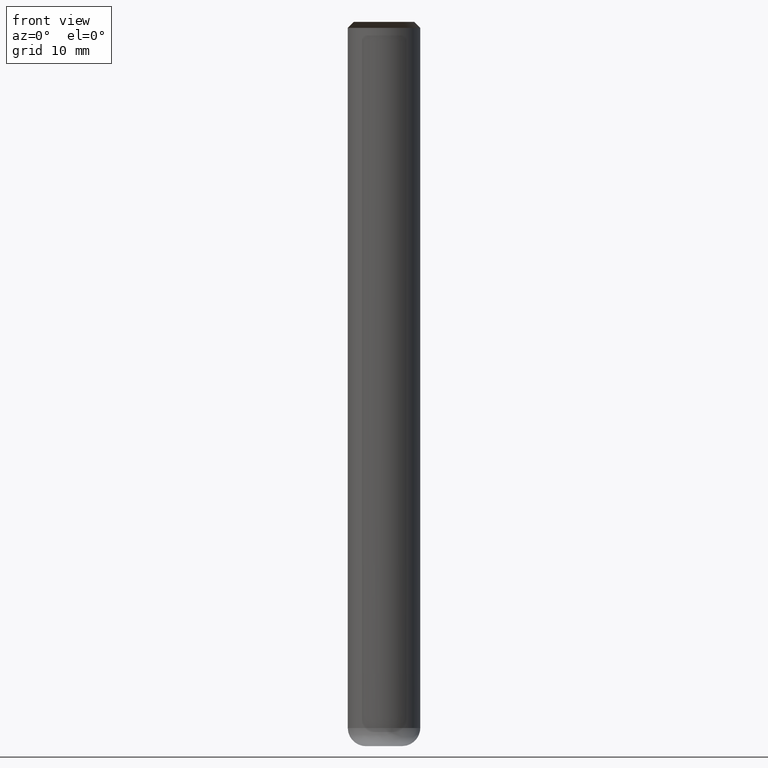
[diagram: clean part render]
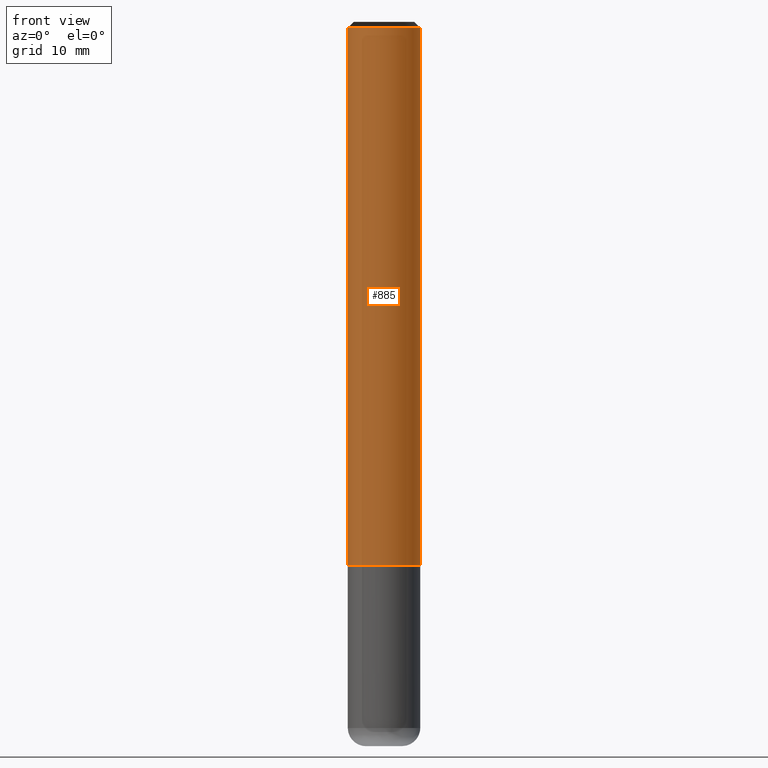
[diagram: same view with one face highlighted and labeled with its STEP entity id]
A machine part, front view. The second image highlights one B-rep face of the part: STEP entity #885.
In plain terms, the highlighted face is a freeform B-spline surface patch.
Its self-contained STEP definition (entity closure, byte-faithful):
#558=CARTESIAN_POINT('',(3.0,0.0,0.0));
#562=CARTESIAN_POINT('',(-3.0,0.0,0.0));
#563=CARTESIAN_POINT('',(3.0,0.0,44.5));
#567=CARTESIAN_POINT('',(-3.0,0.0,44.5));
#574=CARTESIAN_POINT('',(-3.0,-3.0,0.0));
#575=CARTESIAN_POINT('',(0.0,-3.0,0.0));
#576=CARTESIAN_POINT('',(3.0,-3.0,0.0));
#577=CARTESIAN_POINT('',(-3.0,-3.0,44.5));
#578=CARTESIAN_POINT('',(0.0,-3.0,44.5));
#579=CARTESIAN_POINT('',(3.0,-3.0,44.5));
#866=(
BOUNDED_SURFACE()
B_SPLINE_SURFACE(1,2,(
(#562,#574,#575,#576,#558),
(#567,#577,#578,#579,#563)
), .UNSPECIFIED.,.F.,.F.,.F.)
B_SPLINE_SURFACE_WITH_KNOTS((2,2),(3,2,3),(
0.0,1.0),(
0.0,0.5,1.0), .UNSPECIFIED.)
GEOMETRIC_REPRESENTATION_ITEM()
RATIONAL_B_SPLINE_SURFACE(((1.0,0.707106781187,1.0,0.707106781187,1.0),
(1.0,0.707106781187,1.0,0.707106781187,1.0)
))
REPRESENTATION_ITEM('')
SURFACE()
);
#867=(
BOUNDED_CURVE()
B_SPLINE_CURVE(1,(#567,#562),.UNSPECIFIED.,.F.,.F.)
B_SPLINE_CURVE_WITH_KNOTS((2,2),
(0.0,1.0),.UNSPECIFIED.)
CURVE()
GEOMETRIC_REPRESENTATION_ITEM()
RATIONAL_B_SPLINE_CURVE((1.0,1.0))
REPRESENTATION_ITEM('')
);
#868=(
BOUNDED_CURVE()
B_SPLINE_CURVE(2,(#562,#574,#575,#576,#558),.UNSPECIFIED.,.F.,.F.)
B_SPLINE_CURVE_WITH_KNOTS((3,2,3),
(0.0,0.5,1.0),.UNSPECIFIED.)
CURVE()
GEOMETRIC_REPRESENTATION_ITEM()
RATIONAL_B_SPLINE_CURVE((1.0,0.707106781187,1.0,0.707106781187,1.0))
REPRESENTATION_ITEM('')
);
#869=(
BOUNDED_CURVE()
B_SPLINE_CURVE(1,(#558,#563),.UNSPECIFIED.,.F.,.F.)
B_SPLINE_CURVE_WITH_KNOTS((2,2),
(0.0,1.0),.UNSPECIFIED.)
CURVE()
GEOMETRIC_REPRESENTATION_ITEM()
RATIONAL_B_SPLINE_CURVE((1.0,1.0))
REPRESENTATION_ITEM('')
);
#870=(
BOUNDED_CURVE()
B_SPLINE_CURVE(2,(#563,#579,#578,#577,#567),.UNSPECIFIED.,.F.,.F.)
B_SPLINE_CURVE_WITH_KNOTS((3,2,3),
(0.0,0.5,1.0),.UNSPECIFIED.)
CURVE()
GEOMETRIC_REPRESENTATION_ITEM()
RATIONAL_B_SPLINE_CURVE((1.0,0.707106781187,1.0,0.707106781187,1.0))
REPRESENTATION_ITEM('')
);
#871=VERTEX_POINT('',#558);
#872=VERTEX_POINT('',#562);
#873=VERTEX_POINT('',#563);
#874=VERTEX_POINT('',#567);
#875=EDGE_CURVE('',#874,#872,#867,.T.);
#876=EDGE_CURVE('',#872,#871,#868,.T.);
#877=EDGE_CURVE('',#871,#873,#869,.T.);
#878=EDGE_CURVE('',#873,#874,#870,.T.);
#879=ORIENTED_EDGE('',*,*,#875,.T.);
#880=ORIENTED_EDGE('',*,*,#876,.T.);
#881=ORIENTED_EDGE('',*,*,#877,.T.);
#882=ORIENTED_EDGE('',*,*,#878,.T.);
#883=EDGE_LOOP('',(#879,#880,#881,#882));
#884=FACE_OUTER_BOUND('',#883,.T.);
#885=ADVANCED_FACE('',(#884),#866,.T.);